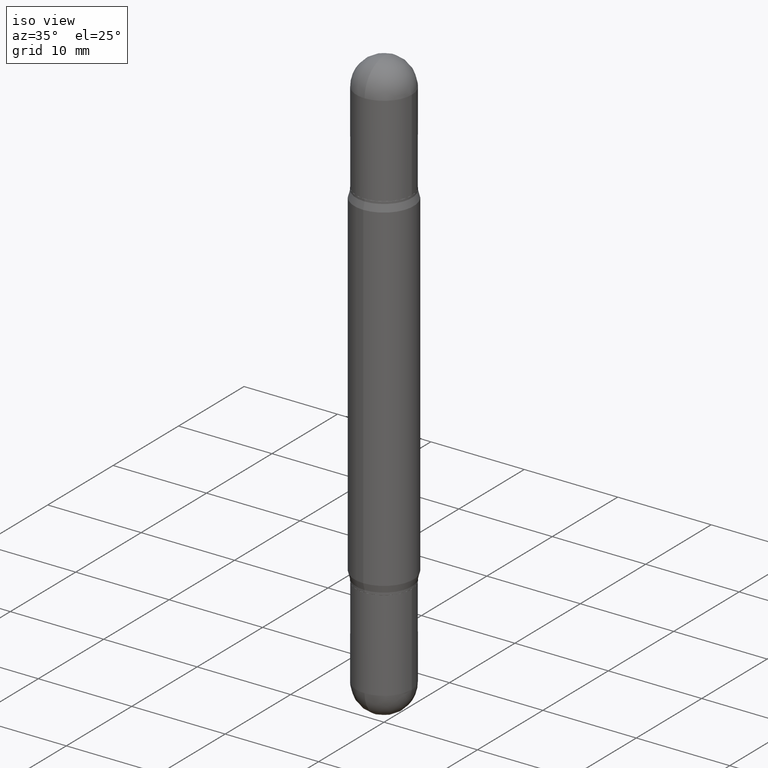
[diagram: clean part render]
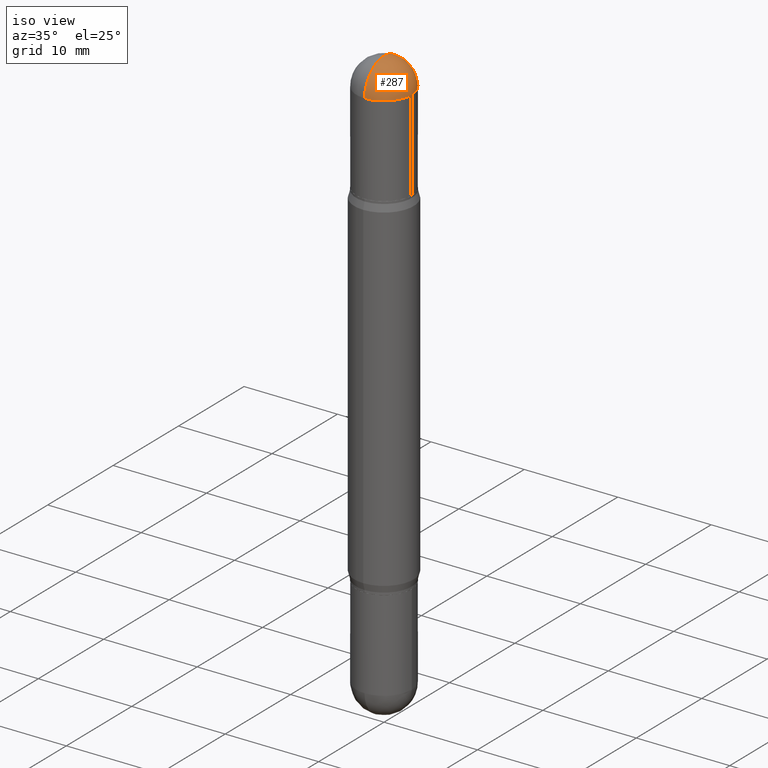
[diagram: same view with one face highlighted and labeled with its STEP entity id]
A machine part, iso view. The second image highlights one B-rep face of the part: STEP entity #287.
In plain terms, the highlighted spherical surface has radius 2.9769 mm.
Its self-contained STEP definition (entity closure, byte-faithful):
#20 = DIRECTION ( 'NONE',  ( -1.000000000000000000, 6.982962677686265922E-15, 1.566701062080016245E-31 ) ) ;
#76 = CARTESIAN_POINT ( 'NONE',  ( -8.040503653387651269E-16, -0.1172000000000004288, -0.1171999999999996378 ) ) ;
#80 = ORIENTED_EDGE ( 'NONE', *, *, #851, .F. ) ;
#106 = CARTESIAN_POINT ( 'NONE',  ( 5.827063071377943309E-29, -4.226444053614477308E-16, -0.1172000000000000541 ) ) ;
#119 = DIRECTION ( 'NONE',  ( 2.445468806185136597E-29, 3.479614466977828254E-15, 1.000000000000000000 ) ) ;
#130 = EDGE_LOOP ( 'NONE', ( #80, #309, #675, #968 ) ) ;
#142 = EDGE_CURVE ( 'NONE', #303, #236, #511, .T. ) ;
#173 = AXIS2_PLACEMENT_3D ( 'NONE', #805, #809, #550 ) ;
#195 = DIRECTION ( 'NONE',  ( 1.000000000000000000, -6.982962677686266711E-15, 0.000000000000000000 ) ) ;
#236 = VERTEX_POINT ( 'NONE', #468 ) ;
#287 = ADVANCED_FACE ( 'NONE', ( #982 ), #395, .T. ) ;
#303 = VERTEX_POINT ( 'NONE', #974 ) ;
#306 = DIRECTION ( 'NONE',  ( 1.000000000000000000, -6.860497997771530774E-15, -5.827999781331232286E-31 ) ) ;
#309 = ORIENTED_EDGE ( 'NONE', *, *, #683, .T. ) ;
#395 = SPHERICAL_SURFACE ( 'NONE', #173, 0.1172000000000000125 ) ;
#404 = AXIS2_PLACEMENT_3D ( 'NONE', #626, #306, #887 ) ;
#430 = VERTEX_POINT ( 'NONE', #76 ) ;
#439 = CIRCLE ( 'NONE', #479, 0.1171999999999999847 ) ;
#468 = CARTESIAN_POINT ( 'NONE',  ( 8.184032258248885352E-16, 0.1171999999999995684, -0.1172000000000004566 ) ) ;
#479 = AXIS2_PLACEMENT_3D ( 'NONE', #686, #750, #1106 ) ;
#497 = CIRCLE ( 'NONE', #1017, 0.1172000000000000125 ) ;
#504 = VERTEX_POINT ( 'NONE', #520 ) ;
#511 = CIRCLE ( 'NONE', #900, 0.1171999999999999847 ) ;
#520 = CARTESIAN_POINT ( 'NONE',  ( 6.108660741008250017E-29, -2.201002007464966888E-17, -3.414809992080329023E-17 ) ) ;
#550 = DIRECTION ( 'NONE',  ( 6.982962677686265922E-15, 1.000000000000000000, -3.496392483358698316E-15 ) ) ;
#613 = DIRECTION ( 'NONE',  ( -6.982962677686265922E-15, -1.000000000000000000, 0.000000000000000000 ) ) ;
#626 = CARTESIAN_POINT ( 'NONE',  ( 5.817040522468761480E-29, -4.369972658474546835E-16, -0.1172000000000000541 ) ) ;
#675 = ORIENTED_EDGE ( 'NONE', *, *, #1095, .T. ) ;
#683 = EDGE_CURVE ( 'NONE', #504, #430, #1054, .T. ) ;
#686 = CARTESIAN_POINT ( 'NONE',  ( 5.827063071377943309E-29, -4.226444053614477308E-16, -0.1172000000000000541 ) ) ;
#750 = DIRECTION ( 'NONE',  ( 2.445468806185136597E-29, 3.479614466977828254E-15, 1.000000000000000000 ) ) ;
#785 = CARTESIAN_POINT ( 'NONE',  ( 5.817040522468761480E-29, -4.369972658474546835E-16, -0.1172000000000000541 ) ) ;
#805 = CARTESIAN_POINT ( 'NONE',  ( 5.817040522468761480E-29, -4.369972658474546835E-16, -0.1172000000000000541 ) ) ;
#809 = DIRECTION ( 'NONE',  ( 1.000000000000000000, -6.982962677686265922E-15, -1.566701062079984278E-31 ) ) ;
#851 = EDGE_CURVE ( 'NONE', #504, #236, #497, .T. ) ;
#887 = DIRECTION ( 'NONE',  ( 6.860497997771530774E-15, 1.000000000000000000, 0.000000000000000000 ) ) ;
#900 = AXIS2_PLACEMENT_3D ( 'NONE', #106, #119, #195 ) ;
#968 = ORIENTED_EDGE ( 'NONE', *, *, #142, .T. ) ;
#974 = CARTESIAN_POINT ( 'NONE',  ( 0.1171999999999999847, -1.907045840165833605E-15, -0.1172000000000000541 ) ) ;
#982 = FACE_OUTER_BOUND ( 'NONE', #130, .T. ) ;
#1017 = AXIS2_PLACEMENT_3D ( 'NONE', #785, #20, #613 ) ;
#1054 = CIRCLE ( 'NONE', #404, 0.1172000000000000125 ) ;
#1095 = EDGE_CURVE ( 'NONE', #430, #303, #439, .T. ) ;
#1106 = DIRECTION ( 'NONE',  ( 1.000000000000000000, -6.982962677686266711E-15, 0.000000000000000000 ) ) ;